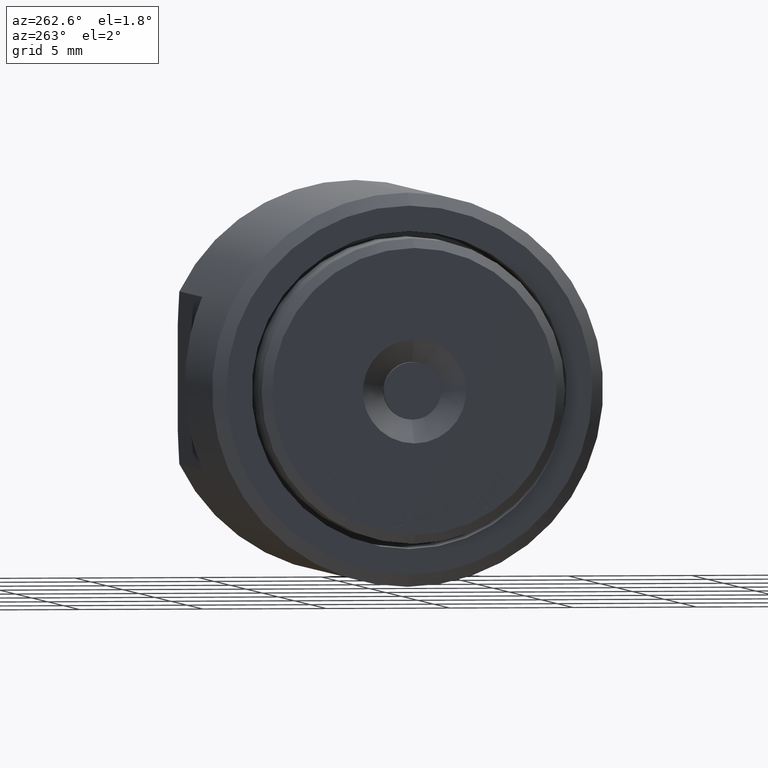
[diagram: clean part render]
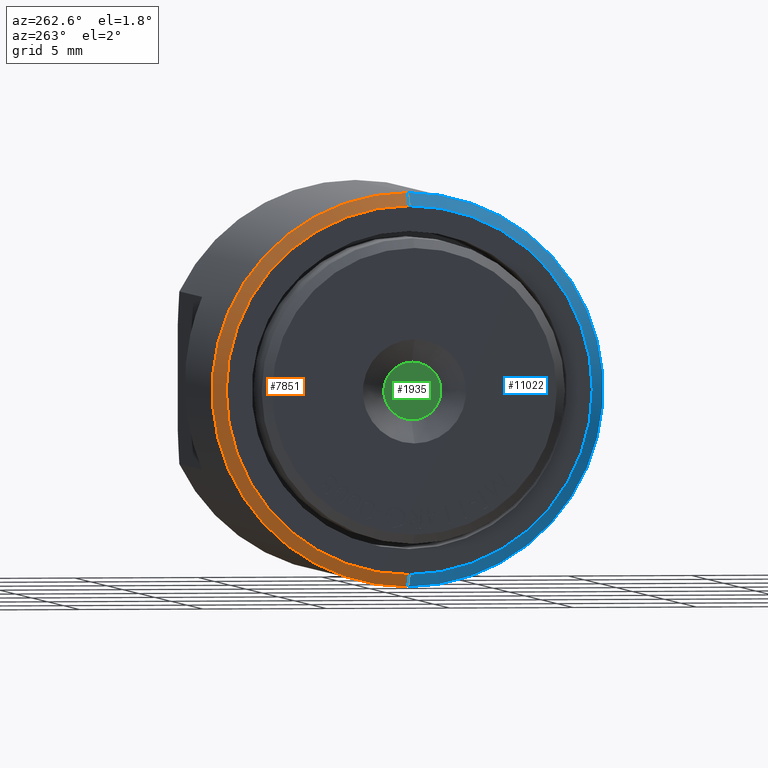
[diagram: same view with three faces highlighted in distinct colors, each labeled with its STEP entity id]
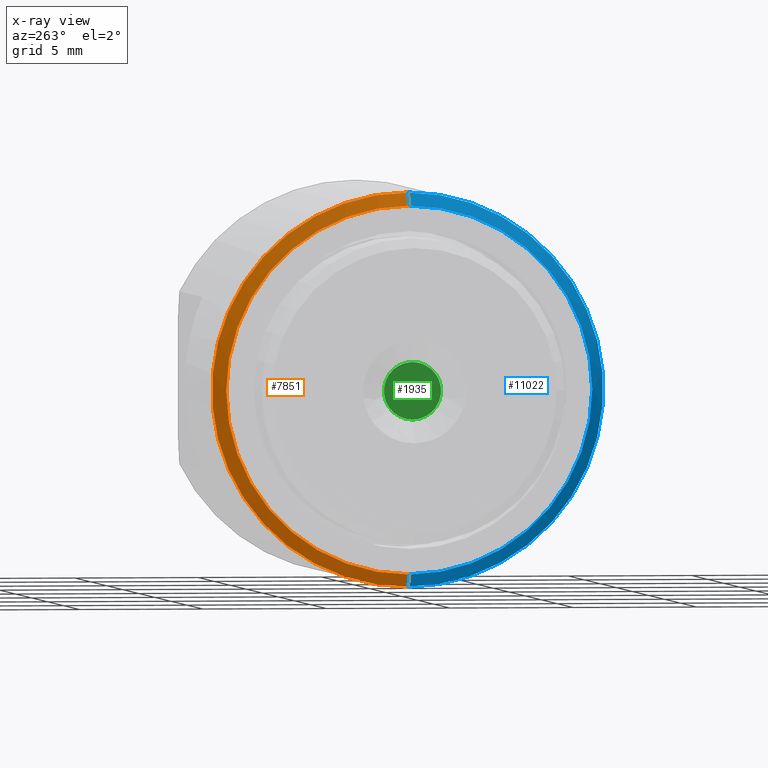
[diagram: x-ray of the same camera — body ghosted, the three highlighted faces saturated]
A machine part, auxiliary view with three faces highlighted in distinct colors.
The next image is the same camera in x-ray (body ghosted, the three faces saturated) — at least one of them is partly hidden behind the body in this view.
Their STEP definitions:

[orange] entity #7851 — the highlighted conical surface has half-angle 45 deg.
#484 = ORIENTED_EDGE ( 'NONE', *, *, #1400, .F. ) ;
#848 = VERTEX_POINT ( 'NONE', #9103 ) ;
#849 = VECTOR ( 'NONE', #8281, 39.37007874015748143 ) ;
#1070 = ORIENTED_EDGE ( 'NONE', *, *, #10755, .T. ) ;
#1159 = DIRECTION ( 'NONE',  ( -1.000000000000000000, -0.0000000000000000000, -0.0000000000000000000 ) ) ;
#1332 = AXIS2_PLACEMENT_3D ( 'NONE', #7111, #1159, #9921 ) ;
#1334 = DIRECTION ( 'NONE',  ( 0.7071067811865476838, 0.0000000000000000000, -0.7071067811865473507 ) ) ;
#1393 = CARTESIAN_POINT ( 'NONE',  ( -0.09149999999999999800, 0.0000000000000000000, -0.2919999999999999818 ) ) ;
#1400 = EDGE_CURVE ( 'NONE', #3880, #11341, #11882, .T. ) ;
#1473 = DIRECTION ( 'NONE',  ( 0.0000000000000000000, 0.0000000000000000000, -1.000000000000000000 ) ) ;
#1677 = CARTESIAN_POINT ( 'NONE',  ( -0.09149999999999999800, 3.698433333425005892E-17, 0.2919999999999999818 ) ) ;
#1818 = CARTESIAN_POINT ( 'NONE',  ( -0.07149999999999999412, 0.0000000000000000000, 0.0000000000000000000 ) ) ;
#3880 = VERTEX_POINT ( 'NONE', #1677 ) ;
#4383 = DIRECTION ( 'NONE',  ( 1.000000000000000000, 0.0000000000000000000, 0.0000000000000000000 ) ) ;
#4511 = CARTESIAN_POINT ( 'NONE',  ( -0.09149999999999999800, 0.0000000000000000000, 0.0000000000000000000 ) ) ;
#5060 = LINE ( 'NONE', #6023, #11336 ) ;
#5096 = CIRCLE ( 'NONE', #11426, 0.3119999999999999996 ) ;
#6023 = CARTESIAN_POINT ( 'NONE',  ( -0.09149999999999999800, 0.0000000000000000000, -0.2919999999999999818 ) ) ;
#6577 = DIRECTION ( 'NONE',  ( -1.000000000000000000, -0.0000000000000000000, -0.0000000000000000000 ) ) ;
#6750 = EDGE_CURVE ( 'NONE', #11341, #9183, #5060, .T. ) ;
#7111 = CARTESIAN_POINT ( 'NONE',  ( -0.09149999999999999800, 0.0000000000000000000, 0.0000000000000000000 ) ) ;
#7257 = ORIENTED_EDGE ( 'NONE', *, *, #9768, .T. ) ;
#7375 = FACE_OUTER_BOUND ( 'NONE', #10925, .T. ) ;
#7851 = ADVANCED_FACE ( 'NONE', ( #7375 ), #10581, .T. ) ;
#8281 = DIRECTION ( 'NONE',  ( 0.7071067811865476838, 8.659560562354930393E-17, 0.7071067811865473507 ) ) ;
#9103 = CARTESIAN_POINT ( 'NONE',  ( -0.07149999999999999412, 0.0000000000000000000, 0.3119999999999999996 ) ) ;
#9183 = VERTEX_POINT ( 'NONE', #9205 ) ;
#9205 = CARTESIAN_POINT ( 'NONE',  ( -0.07149999999999999412, 3.820898013339742174E-17, -0.3119999999999999996 ) ) ;
#9415 = CARTESIAN_POINT ( 'NONE',  ( -0.09149999999999999800, 3.575968653510270842E-17, 0.2919999999999999818 ) ) ;
#9661 = ORIENTED_EDGE ( 'NONE', *, *, #6750, .F. ) ;
#9768 = EDGE_CURVE ( 'NONE', #3880, #848, #10124, .T. ) ;
#9921 = DIRECTION ( 'NONE',  ( 0.0000000000000000000, 0.0000000000000000000, 1.000000000000000000 ) ) ;
#10124 = LINE ( 'NONE', #9415, #849 ) ;
#10166 = AXIS2_PLACEMENT_3D ( 'NONE', #4511, #4383, #1473 ) ;
#10581 = CONICAL_SURFACE ( 'NONE', #10166, 0.2919999999999999818, 0.7853981633974480570 ) ;
#10755 = EDGE_CURVE ( 'NONE', #848, #9183, #5096, .T. ) ;
#10925 = EDGE_LOOP ( 'NONE', ( #484, #7257, #1070, #9661 ) ) ;
#11336 = VECTOR ( 'NONE', #1334, 39.37007874015748143 ) ;
#11341 = VERTEX_POINT ( 'NONE', #1393 ) ;
#11426 = AXIS2_PLACEMENT_3D ( 'NONE', #1818, #6577, #12372 ) ;
#11882 = CIRCLE ( 'NONE', #1332, 0.2919999999999999818 ) ;
#12372 = DIRECTION ( 'NONE',  ( 0.0000000000000000000, 0.0000000000000000000, 1.000000000000000000 ) ) ;

[blue] entity #11022 — the highlighted conical surface has half-angle 45 deg.
#372 = DIRECTION ( 'NONE',  ( -1.000000000000000000, -0.0000000000000000000, -0.0000000000000000000 ) ) ;
#534 = EDGE_CURVE ( 'NONE', #11341, #3880, #6602, .T. ) ;
#705 = FACE_OUTER_BOUND ( 'NONE', #800, .T. ) ;
#800 = EDGE_LOOP ( 'NONE', ( #3302, #3771, #7478, #2921 ) ) ;
#848 = VERTEX_POINT ( 'NONE', #9103 ) ;
#849 = VECTOR ( 'NONE', #8281, 39.37007874015748143 ) ;
#1334 = DIRECTION ( 'NONE',  ( 0.7071067811865476838, 0.0000000000000000000, -0.7071067811865473507 ) ) ;
#1393 = CARTESIAN_POINT ( 'NONE',  ( -0.09149999999999999800, 0.0000000000000000000, -0.2919999999999999818 ) ) ;
#1404 = DIRECTION ( 'NONE',  ( 0.0000000000000000000, 0.0000000000000000000, 1.000000000000000000 ) ) ;
#1677 = CARTESIAN_POINT ( 'NONE',  ( -0.09149999999999999800, 3.698433333425005892E-17, 0.2919999999999999818 ) ) ;
#1688 = AXIS2_PLACEMENT_3D ( 'NONE', #4574, #8080, #11969 ) ;
#1970 = DIRECTION ( 'NONE',  ( -1.000000000000000000, -0.0000000000000000000, -0.0000000000000000000 ) ) ;
#2921 = ORIENTED_EDGE ( 'NONE', *, *, #9077, .T. ) ;
#3060 = AXIS2_PLACEMENT_3D ( 'NONE', #8000, #372, #1404 ) ;
#3302 = ORIENTED_EDGE ( 'NONE', *, *, #9768, .F. ) ;
#3771 = ORIENTED_EDGE ( 'NONE', *, *, #534, .F. ) ;
#3880 = VERTEX_POINT ( 'NONE', #1677 ) ;
#4574 = CARTESIAN_POINT ( 'NONE',  ( -0.09149999999999999800, 0.0000000000000000000, 0.0000000000000000000 ) ) ;
#5060 = LINE ( 'NONE', #6023, #11336 ) ;
#6023 = CARTESIAN_POINT ( 'NONE',  ( -0.09149999999999999800, 0.0000000000000000000, -0.2919999999999999818 ) ) ;
#6099 = CIRCLE ( 'NONE', #3060, 0.3119999999999999996 ) ;
#6602 = CIRCLE ( 'NONE', #7412, 0.2919999999999999818 ) ;
#6750 = EDGE_CURVE ( 'NONE', #11341, #9183, #5060, .T. ) ;
#7140 = CONICAL_SURFACE ( 'NONE', #1688, 0.2919999999999999818, 0.7853981633974480570 ) ;
#7412 = AXIS2_PLACEMENT_3D ( 'NONE', #7921, #1970, #8811 ) ;
#7478 = ORIENTED_EDGE ( 'NONE', *, *, #6750, .T. ) ;
#7921 = CARTESIAN_POINT ( 'NONE',  ( -0.09149999999999999800, 0.0000000000000000000, 0.0000000000000000000 ) ) ;
#8000 = CARTESIAN_POINT ( 'NONE',  ( -0.07149999999999999412, 0.0000000000000000000, 0.0000000000000000000 ) ) ;
#8080 = DIRECTION ( 'NONE',  ( 1.000000000000000000, 0.0000000000000000000, 0.0000000000000000000 ) ) ;
#8281 = DIRECTION ( 'NONE',  ( 0.7071067811865476838, 8.659560562354930393E-17, 0.7071067811865473507 ) ) ;
#8811 = DIRECTION ( 'NONE',  ( 0.0000000000000000000, 0.0000000000000000000, 1.000000000000000000 ) ) ;
#9077 = EDGE_CURVE ( 'NONE', #9183, #848, #6099, .T. ) ;
#9103 = CARTESIAN_POINT ( 'NONE',  ( -0.07149999999999999412, 0.0000000000000000000, 0.3119999999999999996 ) ) ;
#9183 = VERTEX_POINT ( 'NONE', #9205 ) ;
#9205 = CARTESIAN_POINT ( 'NONE',  ( -0.07149999999999999412, 3.820898013339742174E-17, -0.3119999999999999996 ) ) ;
#9415 = CARTESIAN_POINT ( 'NONE',  ( -0.09149999999999999800, 3.575968653510270842E-17, 0.2919999999999999818 ) ) ;
#9768 = EDGE_CURVE ( 'NONE', #3880, #848, #10124, .T. ) ;
#10124 = LINE ( 'NONE', #9415, #849 ) ;
#11022 = ADVANCED_FACE ( 'NONE', ( #705 ), #7140, .T. ) ;
#11336 = VECTOR ( 'NONE', #1334, 39.37007874015748143 ) ;
#11341 = VERTEX_POINT ( 'NONE', #1393 ) ;
#11969 = DIRECTION ( 'NONE',  ( 0.0000000000000000000, 0.0000000000000000000, -1.000000000000000000 ) ) ;

[green] entity #1935 — the highlighted planar face has unit normal (1, 0, 0).
#22 = CIRCLE ( 'NONE', #7108, 0.04558246407405781159 ) ;
#155 = VERTEX_POINT ( 'NONE', #8570 ) ;
#338 = DIRECTION ( 'NONE',  ( -1.000000000000000000, -0.0000000000000000000, -0.0000000000000000000 ) ) ;
#492 = CARTESIAN_POINT ( 'NONE',  ( -0.1309999999999999776, 0.0000000000000000000, 0.0000000000000000000 ) ) ;
#1935 = ADVANCED_FACE ( 'NONE', ( #6702 ), #7367, .F. ) ;
#2542 = DIRECTION ( 'NONE',  ( 0.0000000000000000000, 0.0000000000000000000, -1.000000000000000000 ) ) ;
#3314 = CARTESIAN_POINT ( 'NONE',  ( -0.1309999999999999776, 0.0000000000000000000, 0.04558246407405781159 ) ) ;
#4301 = DIRECTION ( 'NONE',  ( -1.000000000000000000, -0.0000000000000000000, -0.0000000000000000000 ) ) ;
#5243 = DIRECTION ( 'NONE',  ( 0.0000000000000000000, 0.0000000000000000000, 1.000000000000000000 ) ) ;
#5819 = AXIS2_PLACEMENT_3D ( 'NONE', #9168, #338, #10003 ) ;
#6136 = EDGE_CURVE ( 'NONE', #155, #12542, #10096, .T. ) ;
#6187 = AXIS2_PLACEMENT_3D ( 'NONE', #11133, #11260, #2542 ) ;
#6492 = EDGE_LOOP ( 'NONE', ( #9499, #6510 ) ) ;
#6510 = ORIENTED_EDGE ( 'NONE', *, *, #6136, .T. ) ;
#6702 = FACE_OUTER_BOUND ( 'NONE', #6492, .T. ) ;
#7108 = AXIS2_PLACEMENT_3D ( 'NONE', #492, #4301, #5243 ) ;
#7367 = PLANE ( 'NONE',  #6187 ) ;
#8142 = EDGE_CURVE ( 'NONE', #12542, #155, #22, .T. ) ;
#8570 = CARTESIAN_POINT ( 'NONE',  ( -0.1309999999999999776, 5.582241872554412184E-18, -0.04558246407405781159 ) ) ;
#9168 = CARTESIAN_POINT ( 'NONE',  ( -0.1309999999999999776, 0.0000000000000000000, 0.0000000000000000000 ) ) ;
#9499 = ORIENTED_EDGE ( 'NONE', *, *, #8142, .T. ) ;
#10003 = DIRECTION ( 'NONE',  ( 0.0000000000000000000, 0.0000000000000000000, 1.000000000000000000 ) ) ;
#10096 = CIRCLE ( 'NONE', #5819, 0.04558246407405781159 ) ;
#11133 = CARTESIAN_POINT ( 'NONE',  ( -0.1309999999999999776, 0.04558246407405781159, 0.0000000000000000000 ) ) ;
#11260 = DIRECTION ( 'NONE',  ( 1.000000000000000000, 0.0000000000000000000, 0.0000000000000000000 ) ) ;
#12542 = VERTEX_POINT ( 'NONE', #3314 ) ;